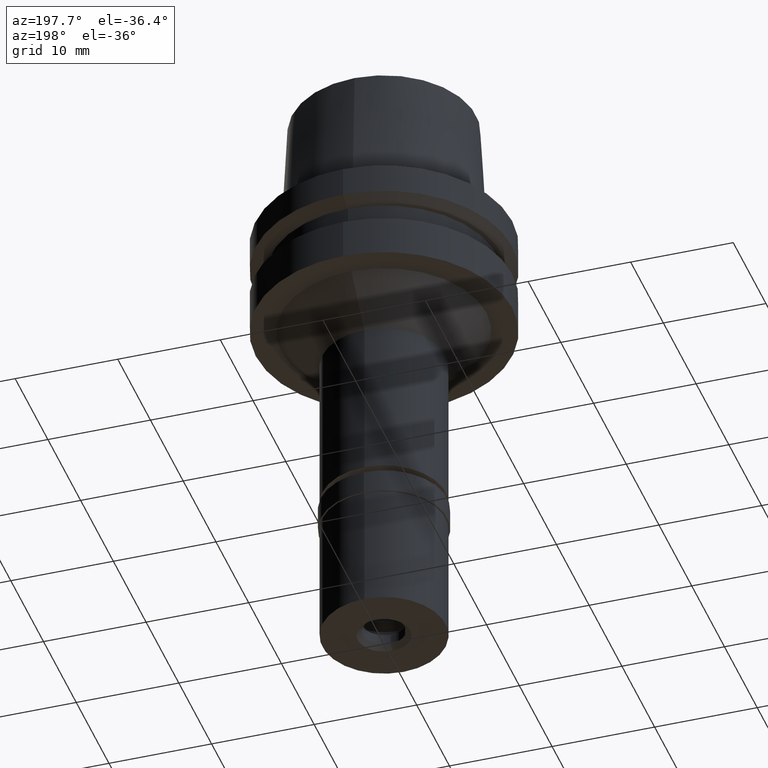
[diagram: clean part render]
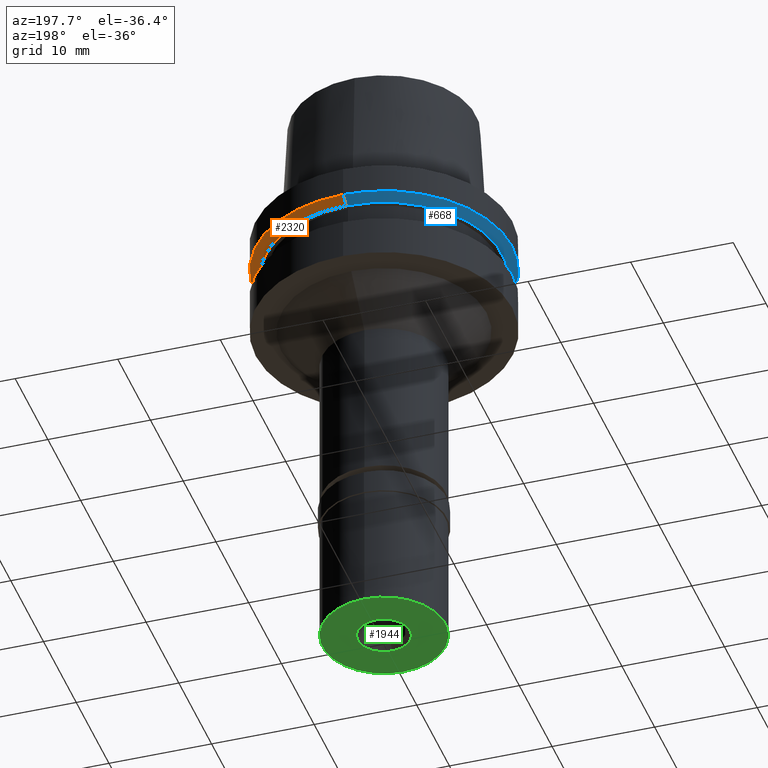
[diagram: same view with three faces highlighted in distinct colors, each labeled with its STEP entity id]
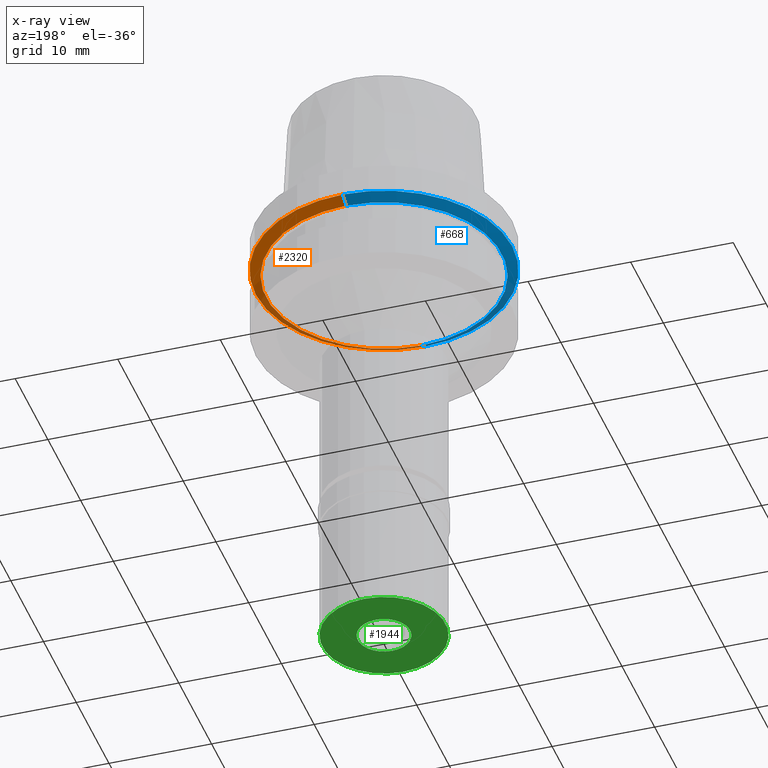
[diagram: x-ray of the same camera — body ghosted, the three highlighted faces saturated]
A machine part, auxiliary view with three faces highlighted in distinct colors.
The next image is the same camera in x-ray (body ghosted, the three faces saturated) — at least one of them is partly hidden behind the body in this view.
Their STEP definitions:

[orange] entity #2320 — the highlighted conical surface has half-angle 60 deg.
#5 = EDGE_CURVE ( 'NONE', #1488, #2026, #2598, .T. ) ;
#43 = DIRECTION ( 'NONE',  ( 0.0000000000000000000, 1.000000000000000000, 0.0000000000000000000 ) ) ;
#276 = CIRCLE ( 'NONE', #1464, 12.50000000000000000 ) ;
#485 = EDGE_CURVE ( 'NONE', #1224, #2026, #1767, .T. ) ;
#515 = CARTESIAN_POINT ( 'NONE',  ( 0.0000000000000000000, -12.50000000000000000, -2.912286759727999996 ) ) ;
#551 = AXIS2_PLACEMENT_3D ( 'NONE', #1475, #874, #1679 ) ;
#729 = CARTESIAN_POINT ( 'NONE',  ( 0.0000000000000000000, 11.48205080757000118, -3.499999999997999822 ) ) ;
#832 = EDGE_CURVE ( 'NONE', #1999, #1488, #276, .T. ) ;
#874 = DIRECTION ( 'NONE',  ( 0.0000000000000000000, 0.0000000000000000000, 1.000000000000000000 ) ) ;
#961 = EDGE_CURVE ( 'NONE', #1999, #1224, #2371, .T. ) ;
#1007 = ORIENTED_EDGE ( 'NONE', *, *, #961, .T. ) ;
#1020 = AXIS2_PLACEMENT_3D ( 'NONE', #1091, #1919, #43 ) ;
#1091 = CARTESIAN_POINT ( 'NONE',  ( 0.0000000000000000000, 0.0000000000000000000, -3.206143379862000042 ) ) ;
#1169 = DIRECTION ( 'NONE',  ( 0.0000000000000000000, -0.8660254037846089048, -0.4999999999997049027 ) ) ;
#1186 = DIRECTION ( 'NONE',  ( 0.0000000000000000000, -1.000000000000000000, 0.0000000000000000000 ) ) ;
#1224 = VERTEX_POINT ( 'NONE', #2470 ) ;
#1464 = AXIS2_PLACEMENT_3D ( 'NONE', #1773, #2400, #1186 ) ;
#1475 = CARTESIAN_POINT ( 'NONE',  ( 0.0000000000000000000, 0.0000000000000000000, -3.499999999997000177 ) ) ;
#1488 = VERTEX_POINT ( 'NONE', #2148 ) ;
#1505 = VECTOR ( 'NONE', #2179, 1000.000000000000114 ) ;
#1522 = ORIENTED_EDGE ( 'NONE', *, *, #5, .F. ) ;
#1555 = CARTESIAN_POINT ( 'NONE',  ( 0.0000000000000000000, 12.50000000000000000, -2.912286759727999996 ) ) ;
#1679 = DIRECTION ( 'NONE',  ( 0.0000000000000000000, -1.000000000000000000, 0.0000000000000000000 ) ) ;
#1765 = VECTOR ( 'NONE', #1169, 1000.000000000000114 ) ;
#1767 = CIRCLE ( 'NONE', #551, 11.48205080757000118 ) ;
#1773 = CARTESIAN_POINT ( 'NONE',  ( 0.0000000000000000000, 0.0000000000000000000, -2.912286759726999907 ) ) ;
#1778 = EDGE_LOOP ( 'NONE', ( #1939, #1007, #1995, #1522 ) ) ;
#1919 = DIRECTION ( 'NONE',  ( 0.0000000000000000000, 0.0000000000000000000, 1.000000000000000000 ) ) ;
#1939 = ORIENTED_EDGE ( 'NONE', *, *, #832, .F. ) ;
#1970 = FACE_OUTER_BOUND ( 'NONE', #1778, .T. ) ;
#1995 = ORIENTED_EDGE ( 'NONE', *, *, #485, .T. ) ;
#1999 = VERTEX_POINT ( 'NONE', #2374 ) ;
#2026 = VERTEX_POINT ( 'NONE', #729 ) ;
#2148 = CARTESIAN_POINT ( 'NONE',  ( 0.0000000000000000000, 12.50000000000000000, -2.912286759727999996 ) ) ;
#2179 = DIRECTION ( 'NONE',  ( 0.0000000000000000000, 0.8660254037846089048, -0.4999999999997049027 ) ) ;
#2199 = CONICAL_SURFACE ( 'NONE', #1020, 11.99102540378000192, 1.047197551196400456 ) ;
#2320 = ADVANCED_FACE ( 'NONE', ( #1970 ), #2199, .T. ) ;
#2371 = LINE ( 'NONE', #515, #1505 ) ;
#2374 = CARTESIAN_POINT ( 'NONE',  ( 0.0000000000000000000, -12.50000000000000000, -2.912286759727999996 ) ) ;
#2400 = DIRECTION ( 'NONE',  ( 0.0000000000000000000, 0.0000000000000000000, 1.000000000000000000 ) ) ;
#2470 = CARTESIAN_POINT ( 'NONE',  ( 0.0000000000000000000, -11.48205080757000118, -3.499999999997000177 ) ) ;
#2598 = LINE ( 'NONE', #1555, #1765 ) ;

[blue] entity #668 — the highlighted conical surface has half-angle 60 deg.
#5 = EDGE_CURVE ( 'NONE', #1488, #2026, #2598, .T. ) ;
#102 = CIRCLE ( 'NONE', #2325, 11.48205080757000118 ) ;
#108 = CONICAL_SURFACE ( 'NONE', #1643, 11.99102540378000192, 1.047197551196400456 ) ;
#207 = CARTESIAN_POINT ( 'NONE',  ( 0.0000000000000000000, 0.0000000000000000000, -3.499999999997000177 ) ) ;
#431 = EDGE_CURVE ( 'NONE', #2026, #1224, #102, .T. ) ;
#515 = CARTESIAN_POINT ( 'NONE',  ( 0.0000000000000000000, -12.50000000000000000, -2.912286759727999996 ) ) ;
#656 = DIRECTION ( 'NONE',  ( 0.0000000000000000000, 0.0000000000000000000, 1.000000000000000000 ) ) ;
#668 = ADVANCED_FACE ( 'NONE', ( #2681 ), #108, .T. ) ;
#711 = ORIENTED_EDGE ( 'NONE', *, *, #5, .T. ) ;
#729 = CARTESIAN_POINT ( 'NONE',  ( 0.0000000000000000000, 11.48205080757000118, -3.499999999997999822 ) ) ;
#931 = DIRECTION ( 'NONE',  ( 0.0000000000000000000, 1.000000000000000000, 0.0000000000000000000 ) ) ;
#961 = EDGE_CURVE ( 'NONE', #1999, #1224, #2371, .T. ) ;
#973 = DIRECTION ( 'NONE',  ( 0.0000000000000000000, 0.0000000000000000000, 1.000000000000000000 ) ) ;
#1152 = DIRECTION ( 'NONE',  ( 0.0000000000000000000, 1.000000000000000000, 0.0000000000000000000 ) ) ;
#1169 = DIRECTION ( 'NONE',  ( 0.0000000000000000000, -0.8660254037846089048, -0.4999999999997049027 ) ) ;
#1181 = CARTESIAN_POINT ( 'NONE',  ( 0.0000000000000000000, 0.0000000000000000000, -2.912286759726999907 ) ) ;
#1189 = AXIS2_PLACEMENT_3D ( 'NONE', #1181, #973, #931 ) ;
#1224 = VERTEX_POINT ( 'NONE', #2470 ) ;
#1488 = VERTEX_POINT ( 'NONE', #2148 ) ;
#1505 = VECTOR ( 'NONE', #2179, 1000.000000000000114 ) ;
#1555 = CARTESIAN_POINT ( 'NONE',  ( 0.0000000000000000000, 12.50000000000000000, -2.912286759727999996 ) ) ;
#1624 = DIRECTION ( 'NONE',  ( 0.0000000000000000000, 0.0000000000000000000, 1.000000000000000000 ) ) ;
#1643 = AXIS2_PLACEMENT_3D ( 'NONE', #2054, #1624, #1881 ) ;
#1765 = VECTOR ( 'NONE', #1169, 1000.000000000000114 ) ;
#1881 = DIRECTION ( 'NONE',  ( 0.0000000000000000000, 1.000000000000000000, 0.0000000000000000000 ) ) ;
#1885 = ORIENTED_EDGE ( 'NONE', *, *, #431, .T. ) ;
#1999 = VERTEX_POINT ( 'NONE', #2374 ) ;
#2014 = CIRCLE ( 'NONE', #1189, 12.50000000000000000 ) ;
#2026 = VERTEX_POINT ( 'NONE', #729 ) ;
#2054 = CARTESIAN_POINT ( 'NONE',  ( 0.0000000000000000000, 0.0000000000000000000, -3.206143379862000042 ) ) ;
#2116 = ORIENTED_EDGE ( 'NONE', *, *, #2475, .F. ) ;
#2148 = CARTESIAN_POINT ( 'NONE',  ( 0.0000000000000000000, 12.50000000000000000, -2.912286759727999996 ) ) ;
#2179 = DIRECTION ( 'NONE',  ( 0.0000000000000000000, 0.8660254037846089048, -0.4999999999997049027 ) ) ;
#2258 = EDGE_LOOP ( 'NONE', ( #1885, #2427, #2116, #711 ) ) ;
#2325 = AXIS2_PLACEMENT_3D ( 'NONE', #207, #656, #1152 ) ;
#2371 = LINE ( 'NONE', #515, #1505 ) ;
#2374 = CARTESIAN_POINT ( 'NONE',  ( 0.0000000000000000000, -12.50000000000000000, -2.912286759727999996 ) ) ;
#2427 = ORIENTED_EDGE ( 'NONE', *, *, #961, .F. ) ;
#2470 = CARTESIAN_POINT ( 'NONE',  ( 0.0000000000000000000, -11.48205080757000118, -3.499999999997000177 ) ) ;
#2475 = EDGE_CURVE ( 'NONE', #1488, #1999, #2014, .T. ) ;
#2598 = LINE ( 'NONE', #1555, #1765 ) ;
#2681 = FACE_OUTER_BOUND ( 'NONE', #2258, .T. ) ;

[green] entity #1944 — the highlighted planar face has unit normal (0, 0, 1).
#3 = CARTESIAN_POINT ( 'NONE',  ( 0.0000000000000000000, 0.0000000000000000000, -14.50000000000000000 ) ) ;
#72 = CARTESIAN_POINT ( 'NONE',  ( 0.0000000000000000000, 0.0000000000000000000, -14.50000000000000000 ) ) ;
#143 = EDGE_LOOP ( 'NONE', ( #549, #1402 ) ) ;
#337 = CARTESIAN_POINT ( 'NONE',  ( 0.0000000000000000000, 6.000000000000000000, -14.50000000000000000 ) ) ;
#440 = DIRECTION ( 'NONE',  ( 0.0000000000000000000, -1.000000000000000000, 0.0000000000000000000 ) ) ;
#463 = CARTESIAN_POINT ( 'NONE',  ( 0.0000000000000000000, 0.0000000000000000000, -14.50000000000000000 ) ) ;
#549 = ORIENTED_EDGE ( 'NONE', *, *, #2169, .F. ) ;
#627 = DIRECTION ( 'NONE',  ( 0.0000000000000000000, 0.0000000000000000000, -1.000000000000000000 ) ) ;
#684 = EDGE_CURVE ( 'NONE', #1687, #841, #2284, .T. ) ;
#734 = VERTEX_POINT ( 'NONE', #1897 ) ;
#821 = AXIS2_PLACEMENT_3D ( 'NONE', #1254, #2086, #1027 ) ;
#841 = VERTEX_POINT ( 'NONE', #337 ) ;
#848 = DIRECTION ( 'NONE',  ( 0.0000000000000000000, 1.000000000000000000, 0.0000000000000000000 ) ) ;
#989 = CARTESIAN_POINT ( 'NONE',  ( 0.0000000000000000000, -2.550000000000000266, -14.50000000000000000 ) ) ;
#1026 = AXIS2_PLACEMENT_3D ( 'NONE', #3, #1218, #1826 ) ;
#1027 = DIRECTION ( 'NONE',  ( 0.0000000000000000000, 1.000000000000000000, 0.0000000000000000000 ) ) ;
#1041 = VERTEX_POINT ( 'NONE', #989 ) ;
#1144 = PLANE ( 'NONE',  #2357 ) ;
#1168 = CARTESIAN_POINT ( 'NONE',  ( 0.0000000000000000000, -6.000000000000000000, -14.50000000000000000 ) ) ;
#1218 = DIRECTION ( 'NONE',  ( 0.0000000000000000000, 0.0000000000000000000, 1.000000000000000000 ) ) ;
#1254 = CARTESIAN_POINT ( 'NONE',  ( 0.0000000000000000000, 0.0000000000000000000, -14.50000000000000000 ) ) ;
#1360 = EDGE_CURVE ( 'NONE', #1041, #734, #2464, .T. ) ;
#1387 = ORIENTED_EDGE ( 'NONE', *, *, #1360, .F. ) ;
#1400 = EDGE_CURVE ( 'NONE', #734, #1041, #2682, .T. ) ;
#1402 = ORIENTED_EDGE ( 'NONE', *, *, #684, .F. ) ;
#1428 = CARTESIAN_POINT ( 'NONE',  ( 0.0000000000000000000, 0.0000000000000000000, -14.50000000000000000 ) ) ;
#1512 = DIRECTION ( 'NONE',  ( 0.0000000000000000000, 0.0000000000000000000, 1.000000000000000000 ) ) ;
#1687 = VERTEX_POINT ( 'NONE', #1168 ) ;
#1771 = AXIS2_PLACEMENT_3D ( 'NONE', #1428, #627, #440 ) ;
#1774 = DIRECTION ( 'NONE',  ( 1.000000000000000000, 0.0000000000000000000, 0.0000000000000000000 ) ) ;
#1804 = AXIS2_PLACEMENT_3D ( 'NONE', #463, #2095, #848 ) ;
#1826 = DIRECTION ( 'NONE',  ( 0.0000000000000000000, -1.000000000000000000, 0.0000000000000000000 ) ) ;
#1850 = CIRCLE ( 'NONE', #1804, 6.000000000000000000 ) ;
#1854 = ORIENTED_EDGE ( 'NONE', *, *, #1400, .F. ) ;
#1857 = FACE_OUTER_BOUND ( 'NONE', #143, .T. ) ;
#1863 = EDGE_LOOP ( 'NONE', ( #1854, #1387 ) ) ;
#1897 = CARTESIAN_POINT ( 'NONE',  ( 0.0000000000000000000, 2.550000000000000266, -14.50000000000000000 ) ) ;
#1920 = FACE_BOUND ( 'NONE', #1863, .T. ) ;
#1944 = ADVANCED_FACE ( 'NONE', ( #1857, #1920 ), #1144, .F. ) ;
#2086 = DIRECTION ( 'NONE',  ( 0.0000000000000000000, 0.0000000000000000000, -1.000000000000000000 ) ) ;
#2095 = DIRECTION ( 'NONE',  ( 0.0000000000000000000, 0.0000000000000000000, 1.000000000000000000 ) ) ;
#2169 = EDGE_CURVE ( 'NONE', #841, #1687, #1850, .T. ) ;
#2284 = CIRCLE ( 'NONE', #1026, 6.000000000000000000 ) ;
#2357 = AXIS2_PLACEMENT_3D ( 'NONE', #72, #1512, #1774 ) ;
#2464 = CIRCLE ( 'NONE', #1771, 2.550000000000000266 ) ;
#2682 = CIRCLE ( 'NONE', #821, 2.550000000000000266 ) ;